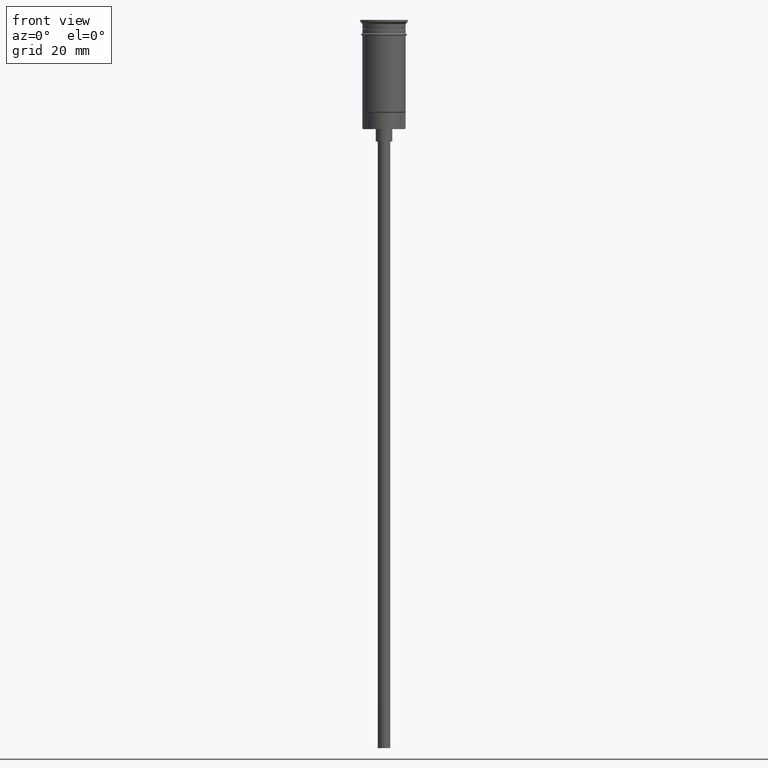
[diagram: clean part render]
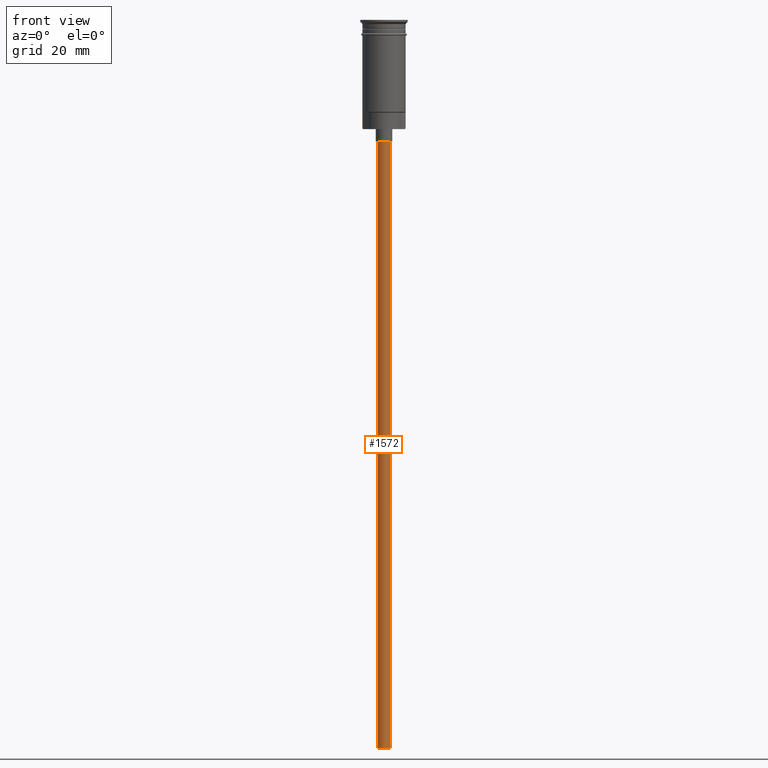
[diagram: same view with one face highlighted and labeled with its STEP entity id]
A machine part, front view. The second image highlights one B-rep face of the part: STEP entity #1572.
In plain terms, the highlighted cylindrical surface (edge-blend (fillet) strip) has radius 1.5 mm, axis along (-0, -0, 1).
Its self-contained STEP definition (entity closure, byte-faithful):
#12 = ORIENTED_EDGE ( 'NONE', *, *, #70, .F. ) ;
#22 = DIRECTION ( 'NONE',  ( -1.000000000000000000, 0.000000000000000000, 0.000000000000000000 ) ) ;
#70 = EDGE_CURVE ( 'NONE', #1304, #882, #1455, .T. ) ;
#88 = VECTOR ( 'NONE', #220, 1000.000000000000000 ) ;
#162 = VERTEX_POINT ( 'NONE', #1281 ) ;
#197 = CARTESIAN_POINT ( 'NONE',  ( 1.500000000000000222, 0.000000000000000000, -176.5000000000000000 ) ) ;
#211 = LINE ( 'NONE', #197, #606 ) ;
#220 = DIRECTION ( 'NONE',  ( -0.000000000000000000, -0.000000000000000000, 1.000000000000000000 ) ) ;
#230 = EDGE_LOOP ( 'NONE', ( #667, #12, #861, #791 ) ) ;
#295 = CARTESIAN_POINT ( 'NONE',  ( -1.500000000000000222, 1.836970198721030181E-16, -29.50000000000000000 ) ) ;
#330 = LINE ( 'NONE', #827, #88 ) ;
#331 = DIRECTION ( 'NONE',  ( -0.000000000000000000, -0.000000000000000000, 1.000000000000000000 ) ) ;
#363 = EDGE_CURVE ( 'NONE', #882, #1028, #330, .T. ) ;
#386 = AXIS2_PLACEMENT_3D ( 'NONE', #1129, #1224, #22 ) ;
#461 = CYLINDRICAL_SURFACE ( 'NONE', #1257, 1.500000000000000222 ) ;
#588 = FACE_OUTER_BOUND ( 'NONE', #230, .T. ) ;
#606 = VECTOR ( 'NONE', #968, 1000.000000000000000 ) ;
#636 = CARTESIAN_POINT ( 'NONE',  ( 1.500000000000000222, 0.000000000000000000, -176.5000000000000000 ) ) ;
#667 = ORIENTED_EDGE ( 'NONE', *, *, #363, .F. ) ;
#760 = CIRCLE ( 'NONE', #790, 1.500000000000000222 ) ;
#790 = AXIS2_PLACEMENT_3D ( 'NONE', #1533, #908, #918 ) ;
#791 = ORIENTED_EDGE ( 'NONE', *, *, #1449, .T. ) ;
#827 = CARTESIAN_POINT ( 'NONE',  ( -1.500000000000000222, 1.836970198721030181E-16, -176.5000000000000000 ) ) ;
#861 = ORIENTED_EDGE ( 'NONE', *, *, #1579, .T. ) ;
#882 = VERTEX_POINT ( 'NONE', #1515 ) ;
#908 = DIRECTION ( 'NONE',  ( 0.000000000000000000, 0.000000000000000000, -1.000000000000000000 ) ) ;
#918 = DIRECTION ( 'NONE',  ( -1.000000000000000000, 0.000000000000000000, 0.000000000000000000 ) ) ;
#968 = DIRECTION ( 'NONE',  ( -0.000000000000000000, -0.000000000000000000, 1.000000000000000000 ) ) ;
#1028 = VERTEX_POINT ( 'NONE', #295 ) ;
#1129 = CARTESIAN_POINT ( 'NONE',  ( 0.000000000000000000, 0.000000000000000000, -176.5000000000000000 ) ) ;
#1224 = DIRECTION ( 'NONE',  ( 0.000000000000000000, 0.000000000000000000, -1.000000000000000000 ) ) ;
#1257 = AXIS2_PLACEMENT_3D ( 'NONE', #1318, #331, #1303 ) ;
#1281 = CARTESIAN_POINT ( 'NONE',  ( 1.500000000000000222, 0.000000000000000000, -29.50000000000000000 ) ) ;
#1303 = DIRECTION ( 'NONE',  ( 1.000000000000000000, 0.000000000000000000, 0.000000000000000000 ) ) ;
#1304 = VERTEX_POINT ( 'NONE', #636 ) ;
#1318 = CARTESIAN_POINT ( 'NONE',  ( 0.000000000000000000, 0.000000000000000000, -176.5000000000000000 ) ) ;
#1449 = EDGE_CURVE ( 'NONE', #162, #1028, #760, .T. ) ;
#1455 = CIRCLE ( 'NONE', #386, 1.500000000000000222 ) ;
#1515 = CARTESIAN_POINT ( 'NONE',  ( -1.500000000000000222, 1.836970198721030181E-16, -176.5000000000000000 ) ) ;
#1533 = CARTESIAN_POINT ( 'NONE',  ( 0.000000000000000000, 0.000000000000000000, -29.50000000000000000 ) ) ;
#1572 = ADVANCED_FACE ( 'NONE', ( #588 ), #461, .T. ) ;
#1579 = EDGE_CURVE ( 'NONE', #1304, #162, #211, .T. ) ;